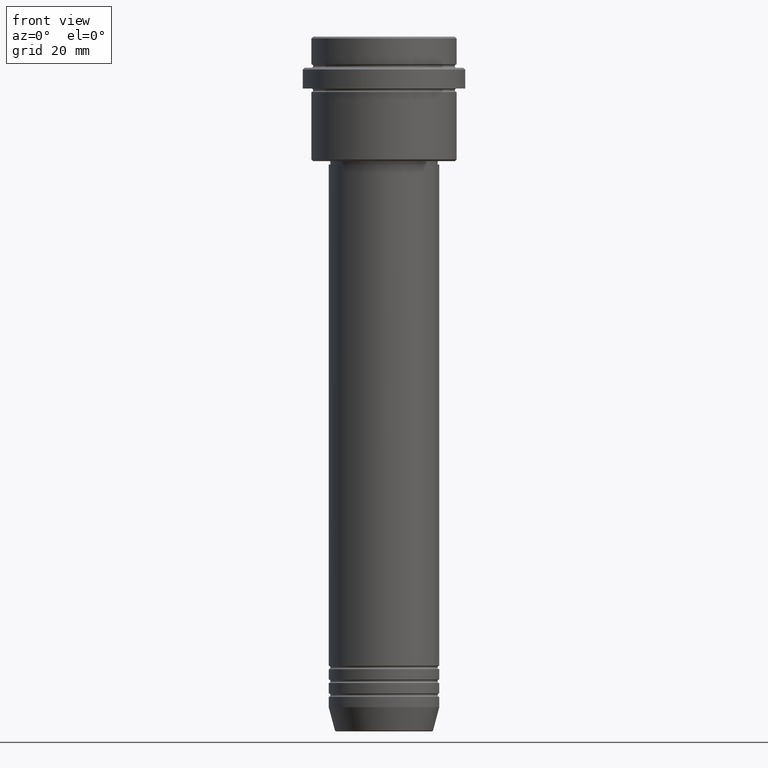
[diagram: clean part render]
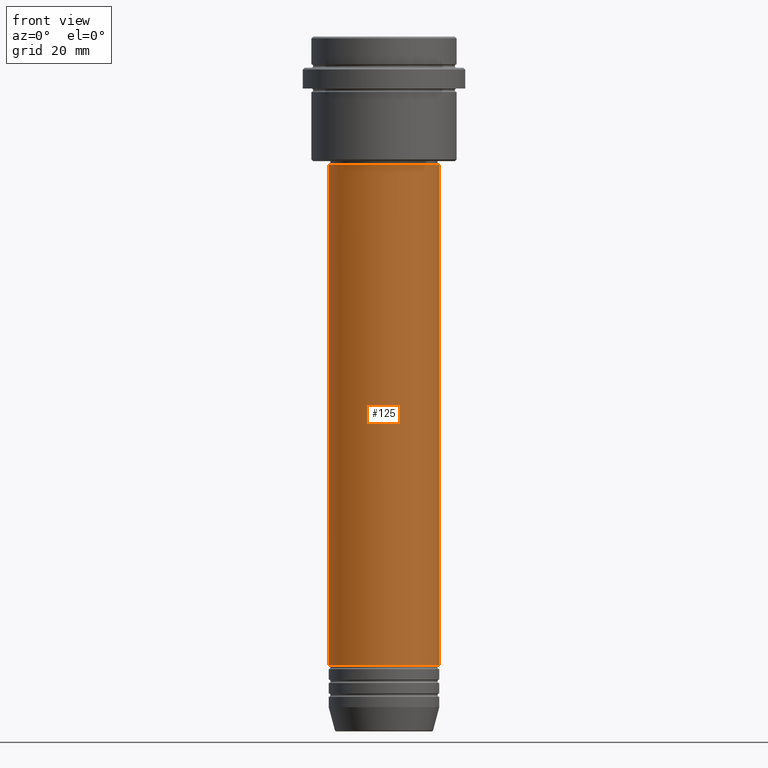
[diagram: same view with one face highlighted and labeled with its STEP entity id]
A machine part, front view. The second image highlights one B-rep face of the part: STEP entity #125.
In plain terms, the highlighted cylindrical surface (partial cylindrical patch) has radius 16 mm, axis along (-0, -0, 1).
Its self-contained STEP definition (entity closure, byte-faithful):
#71 = CIRCLE ( 'NONE', #752, 16.00000000000000000 ) ;
#85 = VERTEX_POINT ( 'NONE', #628 ) ;
#87 = AXIS2_PLACEMENT_3D ( 'NONE', #550, #320, #527 ) ;
#89 = VECTOR ( 'NONE', #880, 1000.000000000000000 ) ;
#125 = ADVANCED_FACE ( 'NONE', ( #437 ), #1199, .T. ) ;
#312 = ORIENTED_EDGE ( 'NONE', *, *, #483, .T. ) ;
#320 = DIRECTION ( 'NONE',  ( -0.000000000000000000, -0.000000000000000000, 1.000000000000000000 ) ) ;
#351 = ORIENTED_EDGE ( 'NONE', *, *, #432, .F. ) ;
#360 = EDGE_LOOP ( 'NONE', ( #351, #312, #1296, #1247 ) ) ;
#372 = DIRECTION ( 'NONE',  ( -0.000000000000000000, -0.000000000000000000, 1.000000000000000000 ) ) ;
#398 = VERTEX_POINT ( 'NONE', #1244 ) ;
#414 = VERTEX_POINT ( 'NONE', #733 ) ;
#432 = EDGE_CURVE ( 'NONE', #398, #85, #503, .T. ) ;
#437 = FACE_OUTER_BOUND ( 'NONE', #360, .T. ) ;
#483 = EDGE_CURVE ( 'NONE', #398, #759, #71, .T. ) ;
#494 = DIRECTION ( 'NONE',  ( -0.000000000000000000, -0.000000000000000000, 1.000000000000000000 ) ) ;
#503 = LINE ( 'NONE', #840, #569 ) ;
#527 = DIRECTION ( 'NONE',  ( 1.000000000000000000, 0.000000000000000000, 0.000000000000000000 ) ) ;
#549 = AXIS2_PLACEMENT_3D ( 'NONE', #887, #605, #1158 ) ;
#550 = CARTESIAN_POINT ( 'NONE',  ( 0.000000000000000000, 0.000000000000000000, 0.000000000000000000 ) ) ;
#569 = VECTOR ( 'NONE', #494, 1000.000000000000000 ) ;
#582 = CARTESIAN_POINT ( 'NONE',  ( 16.00000000000000000, 0.000000000000000000, -181.9999999999998863 ) ) ;
#605 = DIRECTION ( 'NONE',  ( -0.000000000000000000, -0.000000000000000000, 1.000000000000000000 ) ) ;
#628 = CARTESIAN_POINT ( 'NONE',  ( -16.00000000000000355, 1.959434878635765526E-15, -37.00000000000000711 ) ) ;
#675 = EDGE_CURVE ( 'NONE', #759, #414, #1204, .T. ) ;
#724 = DIRECTION ( 'NONE',  ( 1.000000000000000000, 0.000000000000000000, 0.000000000000000000 ) ) ;
#733 = CARTESIAN_POINT ( 'NONE',  ( 16.00000000000000355, 0.000000000000000000, -37.00000000000000711 ) ) ;
#738 = EDGE_CURVE ( 'NONE', #85, #414, #943, .T. ) ;
#752 = AXIS2_PLACEMENT_3D ( 'NONE', #1360, #372, #724 ) ;
#759 = VERTEX_POINT ( 'NONE', #582 ) ;
#840 = CARTESIAN_POINT ( 'NONE',  ( -16.00000000000000000, 1.959434878635765131E-15, 0.000000000000000000 ) ) ;
#880 = DIRECTION ( 'NONE',  ( -0.000000000000000000, -0.000000000000000000, 1.000000000000000000 ) ) ;
#887 = CARTESIAN_POINT ( 'NONE',  ( 0.000000000000000000, 0.000000000000000000, -37.00000000000000711 ) ) ;
#943 = CIRCLE ( 'NONE', #549, 16.00000000000000355 ) ;
#967 = CARTESIAN_POINT ( 'NONE',  ( 16.00000000000000000, 0.000000000000000000, 0.000000000000000000 ) ) ;
#1158 = DIRECTION ( 'NONE',  ( 1.000000000000000000, 0.000000000000000000, 0.000000000000000000 ) ) ;
#1199 = CYLINDRICAL_SURFACE ( 'NONE', #87, 16.00000000000000000 ) ;
#1204 = LINE ( 'NONE', #967, #89 ) ;
#1244 = CARTESIAN_POINT ( 'NONE',  ( -16.00000000000000000, 1.959434878635765131E-15, -181.9999999999998863 ) ) ;
#1247 = ORIENTED_EDGE ( 'NONE', *, *, #738, .F. ) ;
#1296 = ORIENTED_EDGE ( 'NONE', *, *, #675, .T. ) ;
#1360 = CARTESIAN_POINT ( 'NONE',  ( 0.000000000000000000, 0.000000000000000000, -181.9999999999998863 ) ) ;